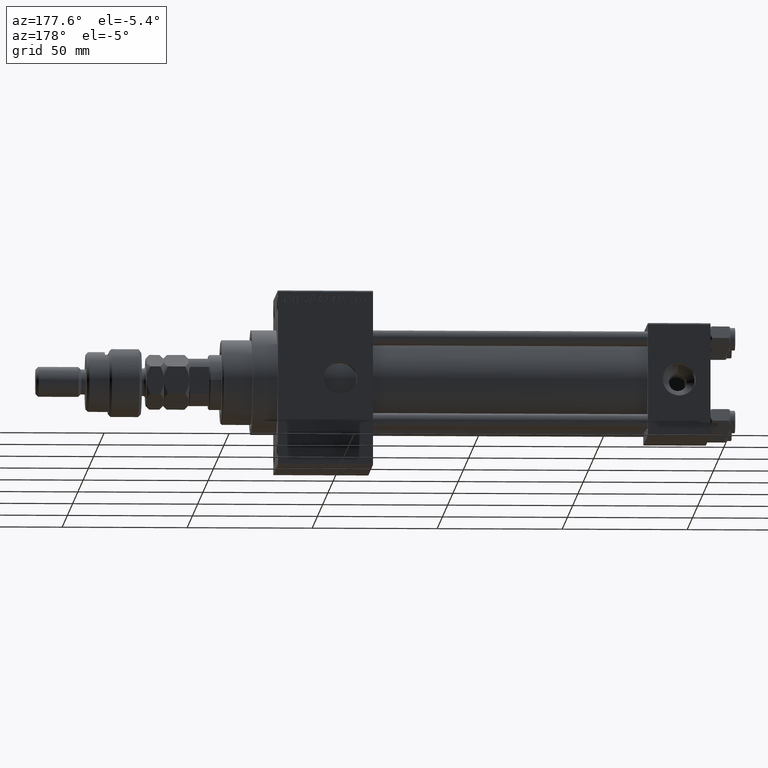
[diagram: clean part render]
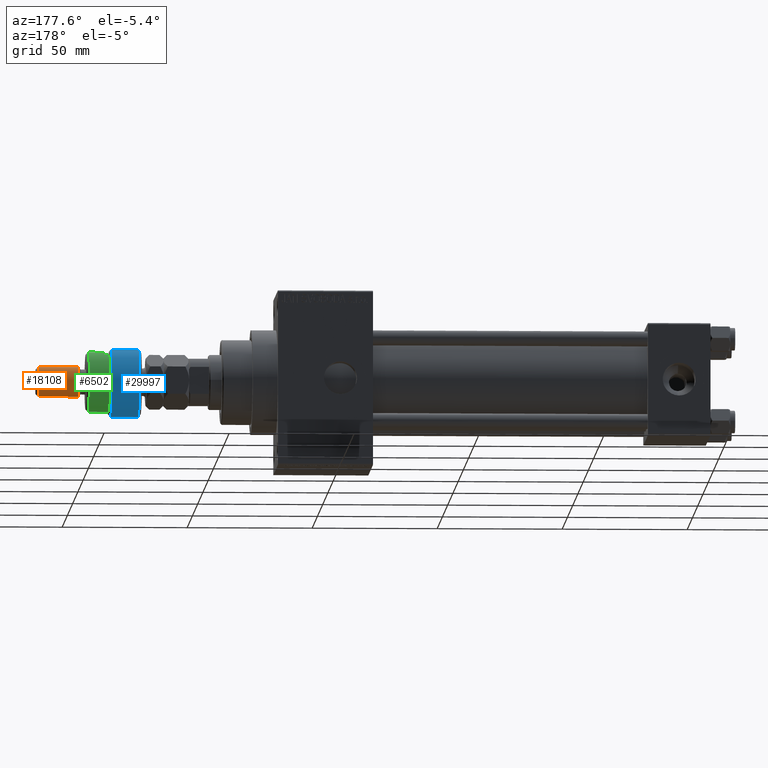
[diagram: same view with three faces highlighted in distinct colors, each labeled with its STEP entity id]
A machine part, auxiliary view with three faces highlighted in distinct colors.
Their STEP definitions:

[orange] entity #18108 — the highlighted cylindrical surface (edge-blend (fillet) strip) has radius 6 mm, axis along (-1, -0, 0).
#899 = LINE ( 'NONE', #17694, #13777 ) ;
#1779 = CIRCLE ( 'NONE', #45398, 6.000000000000000888 ) ;
#1889 = ORIENTED_EDGE ( 'NONE', *, *, #29924, .T. ) ;
#3814 = CARTESIAN_POINT ( 'NONE',  ( 6.000000000000000888, 7.347880794884120722E-16, 24.99999999999999645 ) ) ;
#4195 = CYLINDRICAL_SURFACE ( 'NONE', #38674, 6.000000000000000888 ) ;
#4322 = DIRECTION ( 'NONE',  ( -0.000000000000000000, -0.000000000000000000, 1.000000000000000000 ) ) ;
#4827 = DIRECTION ( 'NONE',  ( -0.000000000000000000, -0.000000000000000000, -1.000000000000000000 ) ) ;
#7321 = DIRECTION ( 'NONE',  ( -0.000000000000000000, -0.000000000000000000, -1.000000000000000000 ) ) ;
#7534 = CARTESIAN_POINT ( 'NONE',  ( -6.000000000000000888, 0.000000000000000000, 40.99999999999997868 ) ) ;
#8285 = CARTESIAN_POINT ( 'NONE',  ( 6.000000000000000888, 7.347880794884120722E-16, 40.99999999999997868 ) ) ;
#8899 = CARTESIAN_POINT ( 'NONE',  ( 0.000000000000000000, 0.000000000000000000, 41.99999999999999289 ) ) ;
#9864 = EDGE_CURVE ( 'NONE', #26768, #14430, #30986, .T. ) ;
#11542 = VERTEX_POINT ( 'NONE', #8285 ) ;
#11952 = CARTESIAN_POINT ( 'NONE',  ( 0.000000000000000000, 0.000000000000000000, 24.99999999999999645 ) ) ;
#13777 = VECTOR ( 'NONE', #4827, 1000.000000000000000 ) ;
#14430 = VERTEX_POINT ( 'NONE', #42948 ) ;
#15144 = EDGE_CURVE ( 'NONE', #27712, #11542, #1779, .T. ) ;
#16584 = ORIENTED_EDGE ( 'NONE', *, *, #15144, .T. ) ;
#17100 = ORIENTED_EDGE ( 'NONE', *, *, #36454, .F. ) ;
#17694 = CARTESIAN_POINT ( 'NONE',  ( 6.000000000000000888, 7.347880794884120722E-16, 41.99999999999999289 ) ) ;
#18108 = ADVANCED_FACE ( 'NONE', ( #36508 ), #4195, .T. ) ;
#18777 = EDGE_LOOP ( 'NONE', ( #16584, #1889, #33919, #17100 ) ) ;
#18881 = CARTESIAN_POINT ( 'NONE',  ( -6.000000000000000888, 0.000000000000000000, 41.99999999999999289 ) ) ;
#19119 = DIRECTION ( 'NONE',  ( 0.000000000000000000, 0.000000000000000000, -1.000000000000000000 ) ) ;
#20358 = DIRECTION ( 'NONE',  ( 1.000000000000000000, 0.000000000000000000, 0.000000000000000000 ) ) ;
#26501 = DIRECTION ( 'NONE',  ( 1.000000000000000000, 0.000000000000000000, 0.000000000000000000 ) ) ;
#26615 = VECTOR ( 'NONE', #7321, 1000.000000000000000 ) ;
#26768 = VERTEX_POINT ( 'NONE', #3814 ) ;
#27712 = VERTEX_POINT ( 'NONE', #7534 ) ;
#29924 = EDGE_CURVE ( 'NONE', #11542, #26768, #899, .T. ) ;
#30986 = CIRCLE ( 'NONE', #42687, 6.000000000000000888 ) ;
#32334 = DIRECTION ( 'NONE',  ( -0.000000000000000000, -0.000000000000000000, -1.000000000000000000 ) ) ;
#32588 = DIRECTION ( 'NONE',  ( -1.000000000000000000, 0.000000000000000000, 0.000000000000000000 ) ) ;
#33919 = ORIENTED_EDGE ( 'NONE', *, *, #9864, .T. ) ;
#36454 = EDGE_CURVE ( 'NONE', #27712, #14430, #38592, .T. ) ;
#36508 = FACE_OUTER_BOUND ( 'NONE', #18777, .T. ) ;
#38592 = LINE ( 'NONE', #18881, #26615 ) ;
#38674 = AXIS2_PLACEMENT_3D ( 'NONE', #8899, #32334, #32588 ) ;
#42687 = AXIS2_PLACEMENT_3D ( 'NONE', #11952, #4322, #20358 ) ;
#42948 = CARTESIAN_POINT ( 'NONE',  ( -6.000000000000000888, 0.000000000000000000, 24.99999999999999645 ) ) ;
#43020 = CARTESIAN_POINT ( 'NONE',  ( 0.000000000000000000, 0.000000000000000000, 40.99999999999997868 ) ) ;
#45398 = AXIS2_PLACEMENT_3D ( 'NONE', #43020, #19119, #26501 ) ;

[blue] entity #29997 — the highlighted cylindrical surface (edge-blend (fillet) strip) has radius 14 mm, axis along (-1, -0, 0).
#1185 = CARTESIAN_POINT ( 'NONE',  ( -12.64911064067351809, 6.000000000000000000, 12.00000000000002842 ) ) ;
#1253 = DIRECTION ( 'NONE',  ( 0.000000000000000000, 0.000000000000000000, -1.000000000000000000 ) ) ;
#1464 = AXIS2_PLACEMENT_3D ( 'NONE', #30161, #1253, #9128 ) ;
#2065 = CARTESIAN_POINT ( 'NONE',  ( -12.64911064067351809, 6.000000000000000000, 1.000000000000021760 ) ) ;
#2688 = DIRECTION ( 'NONE',  ( -0.000000000000000000, -0.000000000000000000, -1.000000000000000000 ) ) ;
#3480 = DIRECTION ( 'NONE',  ( 1.000000000000000000, 0.000000000000000000, 0.000000000000000000 ) ) ;
#4196 = EDGE_LOOP ( 'NONE', ( #10758, #20634, #13259, #9715, #39899 ) ) ;
#4223 = AXIS2_PLACEMENT_3D ( 'NONE', #18384, #50172, #38868 ) ;
#9020 = CARTESIAN_POINT ( 'NONE',  ( 0.000000000000000000, 0.000000000000000000, 13.00000000000000000 ) ) ;
#9128 = DIRECTION ( 'NONE',  ( 1.000000000000000000, 0.000000000000000000, 0.000000000000000000 ) ) ;
#9217 = EDGE_CURVE ( 'NONE', #32623, #11598, #27161, .T. ) ;
#9715 = ORIENTED_EDGE ( 'NONE', *, *, #38326, .T. ) ;
#10758 = ORIENTED_EDGE ( 'NONE', *, *, #19508, .F. ) ;
#11598 = VERTEX_POINT ( 'NONE', #49250 ) ;
#11618 = DIRECTION ( 'NONE',  ( -0.000000000000000000, -0.000000000000000000, 1.000000000000000000 ) ) ;
#13259 = ORIENTED_EDGE ( 'NONE', *, *, #9217, .T. ) ;
#14060 = CIRCLE ( 'NONE', #43438, 14.00000000000000000 ) ;
#15308 = CARTESIAN_POINT ( 'NONE',  ( 0.000000000000000000, 0.000000000000000000, 1.000000000000018208 ) ) ;
#15807 = EDGE_CURVE ( 'NONE', #19049, #39797, #26900, .T. ) ;
#18384 = CARTESIAN_POINT ( 'NONE',  ( 0.000000000000000000, 0.000000000000000000, 1.000000000000018208 ) ) ;
#19049 = VERTEX_POINT ( 'NONE', #34753 ) ;
#19508 = EDGE_CURVE ( 'NONE', #31579, #39797, #44374, .T. ) ;
#20634 = ORIENTED_EDGE ( 'NONE', *, *, #37450, .T. ) ;
#22937 = CARTESIAN_POINT ( 'NONE',  ( -12.64911064067351809, -5.999999999999999112, 14.50000000000000000 ) ) ;
#24823 = FACE_OUTER_BOUND ( 'NONE', #4196, .T. ) ;
#24943 = CARTESIAN_POINT ( 'NONE',  ( -12.64911064067351809, 6.000000000000000000, 14.50000000000000000 ) ) ;
#25086 = DIRECTION ( 'NONE',  ( -1.000000000000000000, 0.000000000000000000, 0.000000000000000000 ) ) ;
#25721 = DIRECTION ( 'NONE',  ( -0.000000000000000000, -0.000000000000000000, -1.000000000000000000 ) ) ;
#26183 = VECTOR ( 'NONE', #25721, 1000.000000000000000 ) ;
#26900 = CIRCLE ( 'NONE', #4223, 14.00000000000000000 ) ;
#27161 = LINE ( 'NONE', #22937, #30944 ) ;
#27200 = CARTESIAN_POINT ( 'NONE',  ( -12.64911064067351809, -5.999999999999999112, 12.00000000000002842 ) ) ;
#29795 = DIRECTION ( 'NONE',  ( -0.000000000000000000, -0.000000000000000000, -1.000000000000000000 ) ) ;
#29997 = ADVANCED_FACE ( 'NONE', ( #24823 ), #40827, .T. ) ;
#30161 = CARTESIAN_POINT ( 'NONE',  ( 0.000000000000000000, 0.000000000000000000, 12.00000000000002842 ) ) ;
#30944 = VECTOR ( 'NONE', #2688, 1000.000000000000000 ) ;
#31579 = VERTEX_POINT ( 'NONE', #1185 ) ;
#32623 = VERTEX_POINT ( 'NONE', #27200 ) ;
#33122 = AXIS2_PLACEMENT_3D ( 'NONE', #9020, #29795, #25086 ) ;
#34753 = CARTESIAN_POINT ( 'NONE',  ( 14.00000000000000000, 0.000000000000000000, 1.000000000000018208 ) ) ;
#37450 = EDGE_CURVE ( 'NONE', #31579, #32623, #40065, .T. ) ;
#38326 = EDGE_CURVE ( 'NONE', #11598, #19049, #14060, .T. ) ;
#38868 = DIRECTION ( 'NONE',  ( 1.000000000000000000, 0.000000000000000000, 0.000000000000000000 ) ) ;
#39797 = VERTEX_POINT ( 'NONE', #2065 ) ;
#39899 = ORIENTED_EDGE ( 'NONE', *, *, #15807, .T. ) ;
#40065 = CIRCLE ( 'NONE', #1464, 14.00000000000000000 ) ;
#40827 = CYLINDRICAL_SURFACE ( 'NONE', #33122, 14.00000000000000000 ) ;
#43438 = AXIS2_PLACEMENT_3D ( 'NONE', #15308, #11618, #3480 ) ;
#44374 = LINE ( 'NONE', #24943, #26183 ) ;
#49250 = CARTESIAN_POINT ( 'NONE',  ( -12.64911064067351809, -5.999999999999999112, 1.000000000000021760 ) ) ;
#50172 = DIRECTION ( 'NONE',  ( -0.000000000000000000, -0.000000000000000000, 1.000000000000000000 ) ) ;

[green] entity #6502 — the highlighted cylindrical surface (edge-blend (fillet) strip) has radius 12 mm, axis along (-1, -0, 0).
#2919 = EDGE_CURVE ( 'NONE', #13046, #45223, #42697, .T. ) ;
#3775 = CARTESIAN_POINT ( 'NONE',  ( -12.00000000000000178, 0.000000000000000000, 20.99999999999998224 ) ) ;
#5930 = CARTESIAN_POINT ( 'NONE',  ( -10.39230484541326760, 6.000000000000000000, 22.00000000000000000 ) ) ;
#6502 = ADVANCED_FACE ( 'NONE', ( #34077 ), #26458, .T. ) ;
#8036 = ORIENTED_EDGE ( 'NONE', *, *, #28178, .T. ) ;
#9089 = CARTESIAN_POINT ( 'NONE',  ( 12.00000000000000178, 1.469576158976824144E-15, 22.00000000000000000 ) ) ;
#9967 = ORIENTED_EDGE ( 'NONE', *, *, #34589, .F. ) ;
#11110 = DIRECTION ( 'NONE',  ( 1.000000000000000000, 0.000000000000000000, 0.000000000000000000 ) ) ;
#13046 = VERTEX_POINT ( 'NONE', #26545 ) ;
#13833 = DIRECTION ( 'NONE',  ( -1.000000000000000000, 0.000000000000000000, 0.000000000000000000 ) ) ;
#15013 = AXIS2_PLACEMENT_3D ( 'NONE', #20053, #27177, #11110 ) ;
#15316 = EDGE_CURVE ( 'NONE', #19772, #19539, #45086, .T. ) ;
#15494 = DIRECTION ( 'NONE',  ( -0.000000000000000000, -0.000000000000000000, -1.000000000000000000 ) ) ;
#17387 = AXIS2_PLACEMENT_3D ( 'NONE', #50593, #30918, #13833 ) ;
#18466 = VECTOR ( 'NONE', #49557, 1000.000000000000000 ) ;
#19539 = VERTEX_POINT ( 'NONE', #24692 ) ;
#19602 = DIRECTION ( 'NONE',  ( 0.000000000000000000, 0.000000000000000000, -1.000000000000000000 ) ) ;
#19772 = VERTEX_POINT ( 'NONE', #44759 ) ;
#20053 = CARTESIAN_POINT ( 'NONE',  ( 0.000000000000000000, 0.000000000000000000, 13.00000000000000000 ) ) ;
#21892 = CARTESIAN_POINT ( 'NONE',  ( -12.00000000000000178, 0.000000000000000000, 14.50000000000000000 ) ) ;
#22361 = VERTEX_POINT ( 'NONE', #21892 ) ;
#22930 = EDGE_CURVE ( 'NONE', #46526, #22361, #51486, .T. ) ;
#23790 = VECTOR ( 'NONE', #15494, 1000.000000000000000 ) ;
#24071 = DIRECTION ( 'NONE',  ( -1.000000000000000000, 0.000000000000000000, 0.000000000000000000 ) ) ;
#24692 = CARTESIAN_POINT ( 'NONE',  ( 12.00000000000000178, 1.469576158976824144E-15, 13.00000000000000000 ) ) ;
#26458 = CYLINDRICAL_SURFACE ( 'NONE', #17387, 12.00000000000000178 ) ;
#26522 = VECTOR ( 'NONE', #38505, 1000.000000000000000 ) ;
#26545 = CARTESIAN_POINT ( 'NONE',  ( -10.39230484541326760, 6.000000000000000000, 13.00000000000000000 ) ) ;
#27177 = DIRECTION ( 'NONE',  ( 0.000000000000000000, 0.000000000000000000, 1.000000000000000000 ) ) ;
#28178 = EDGE_CURVE ( 'NONE', #46526, #19772, #45696, .T. ) ;
#29714 = DIRECTION ( 'NONE',  ( 0.000000000000000000, 0.000000000000000000, -1.000000000000000000 ) ) ;
#30100 = CIRCLE ( 'NONE', #15013, 12.00000000000000178 ) ;
#30918 = DIRECTION ( 'NONE',  ( -0.000000000000000000, -0.000000000000000000, -1.000000000000000000 ) ) ;
#31593 = ORIENTED_EDGE ( 'NONE', *, *, #22930, .F. ) ;
#33147 = DIRECTION ( 'NONE',  ( 1.000000000000000000, 0.000000000000000000, 0.000000000000000000 ) ) ;
#34077 = FACE_OUTER_BOUND ( 'NONE', #47088, .T. ) ;
#34589 = EDGE_CURVE ( 'NONE', #22361, #45223, #37392, .T. ) ;
#35862 = ORIENTED_EDGE ( 'NONE', *, *, #2919, .T. ) ;
#35969 = CARTESIAN_POINT ( 'NONE',  ( -10.39230484541326582, 5.999999999999998224, 14.50000000000000000 ) ) ;
#37067 = CARTESIAN_POINT ( 'NONE',  ( 0.000000000000000000, 0.000000000000000000, 20.99999999999998224 ) ) ;
#37392 = CIRCLE ( 'NONE', #37430, 12.00000000000000178 ) ;
#37430 = AXIS2_PLACEMENT_3D ( 'NONE', #40338, #19602, #24071 ) ;
#38216 = ORIENTED_EDGE ( 'NONE', *, *, #15316, .T. ) ;
#38505 = DIRECTION ( 'NONE',  ( 0.000000000000000000, 0.000000000000000000, 1.000000000000000000 ) ) ;
#40187 = EDGE_CURVE ( 'NONE', #19539, #13046, #30100, .T. ) ;
#40338 = CARTESIAN_POINT ( 'NONE',  ( 0.000000000000000000, 0.000000000000000000, 14.50000000000000000 ) ) ;
#42697 = LINE ( 'NONE', #5930, #26522 ) ;
#43859 = CARTESIAN_POINT ( 'NONE',  ( -12.00000000000000178, 0.000000000000000000, 22.00000000000000000 ) ) ;
#44759 = CARTESIAN_POINT ( 'NONE',  ( 12.00000000000000178, 1.469576158976824144E-15, 20.99999999999998224 ) ) ;
#45086 = LINE ( 'NONE', #9089, #18466 ) ;
#45104 = ORIENTED_EDGE ( 'NONE', *, *, #40187, .T. ) ;
#45223 = VERTEX_POINT ( 'NONE', #35969 ) ;
#45696 = CIRCLE ( 'NONE', #48218, 12.00000000000000178 ) ;
#46526 = VERTEX_POINT ( 'NONE', #3775 ) ;
#47088 = EDGE_LOOP ( 'NONE', ( #8036, #38216, #45104, #35862, #9967, #31593 ) ) ;
#48218 = AXIS2_PLACEMENT_3D ( 'NONE', #37067, #29714, #33147 ) ;
#49557 = DIRECTION ( 'NONE',  ( -0.000000000000000000, -0.000000000000000000, -1.000000000000000000 ) ) ;
#50593 = CARTESIAN_POINT ( 'NONE',  ( 0.000000000000000000, 0.000000000000000000, 22.00000000000000000 ) ) ;
#51486 = LINE ( 'NONE', #43859, #23790 ) ;